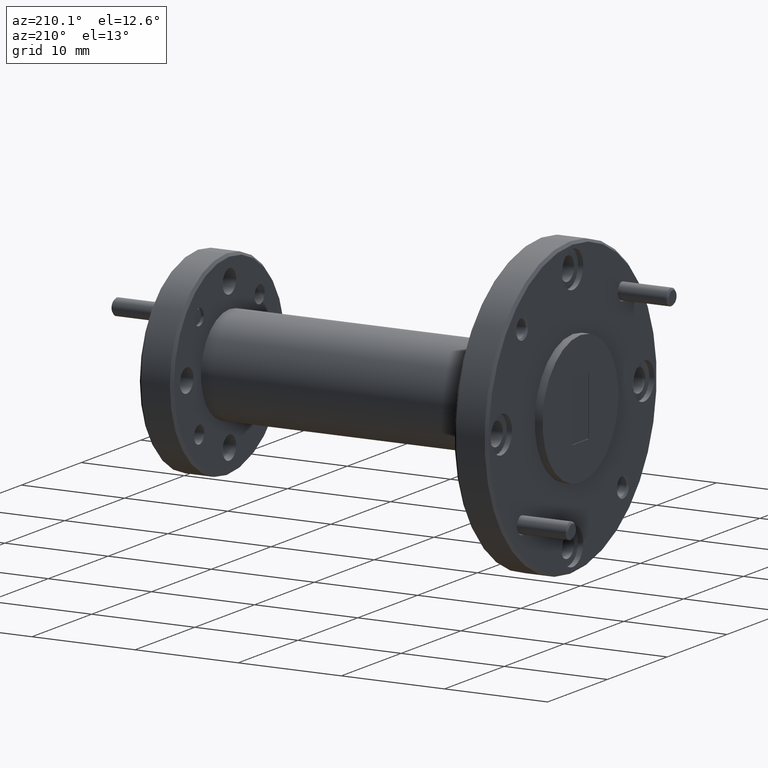
[diagram: clean part render]
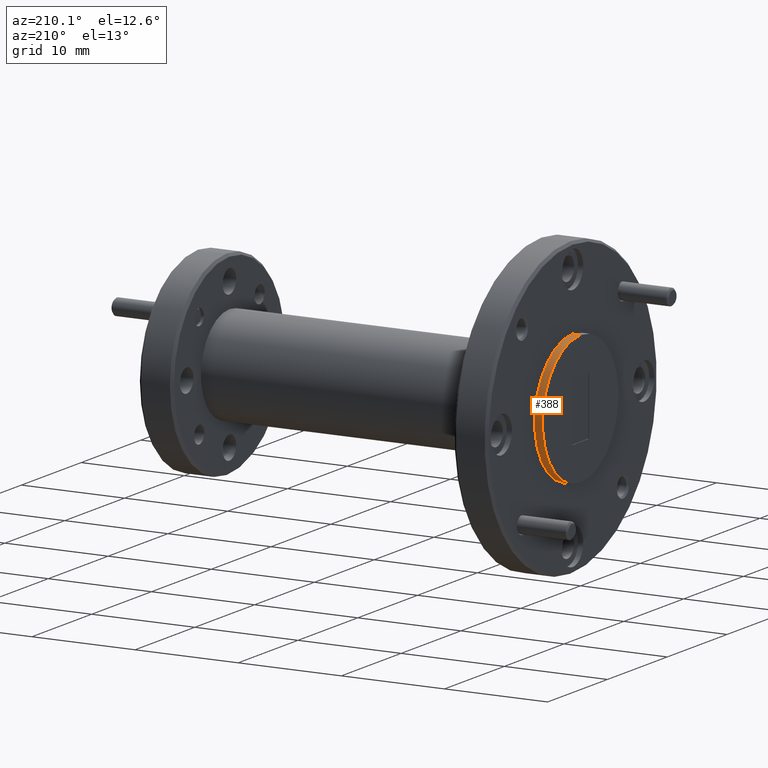
[diagram: same view with one face highlighted and labeled with its STEP entity id]
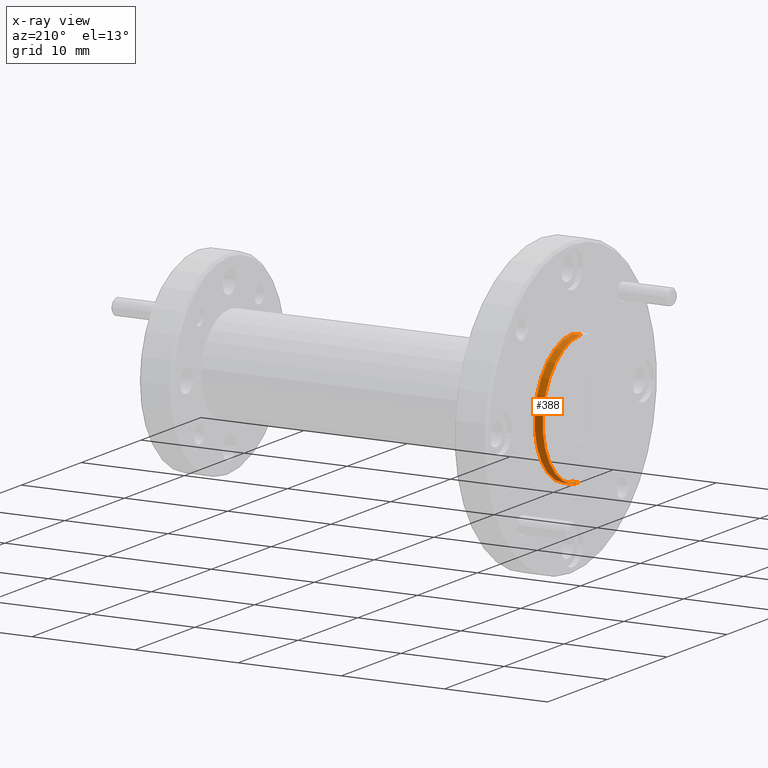
[diagram: x-ray of the same camera — body ghosted, the highlighted face saturated]
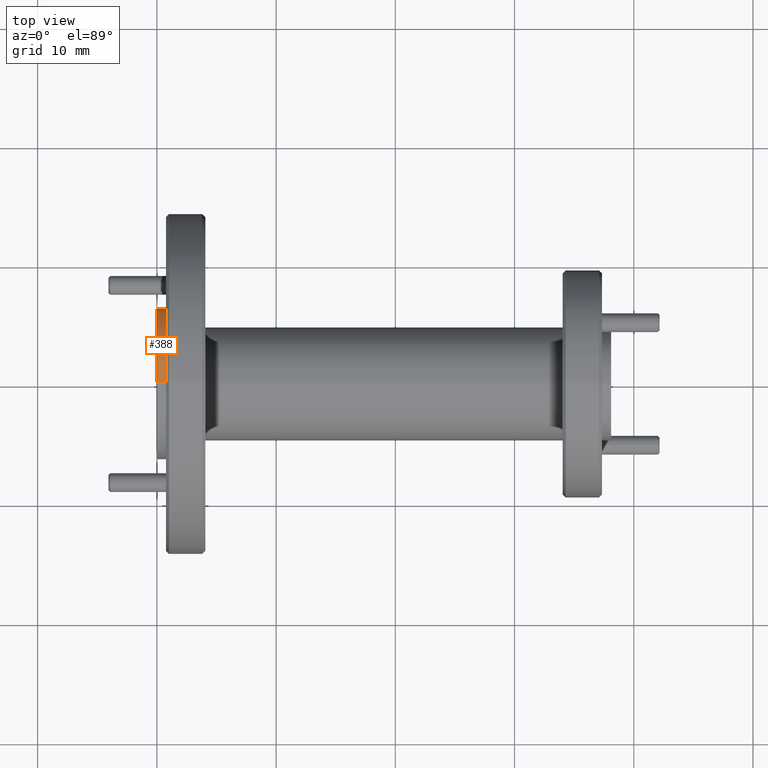
[diagram: same view with one face highlighted and labeled with its STEP entity id]
A machine part, auxiliary view. The second image highlights one B-rep face of the part: STEP entity #388.
The next image is the same camera in x-ray: the body ghosted, the highlighted face saturated — about 0% of this face is hidden behind the body in this view.
A second angle (top view) of the same face is appended — the face is thin or edge-on in the first view.
In plain terms, the highlighted cylindrical surface (partial cylindrical patch) has radius 6.35 mm, axis along (-1, -0, -0).
Its self-contained STEP definition (entity closure, byte-faithful):
#6 = CARTESIAN_POINT ( 'NONE',  ( 7.582401355855259500E-033, 3.061616997868383000E-017, -0.2500000000000000000 ) ) ;
#92 = CARTESIAN_POINT ( 'NONE',  ( 7.582401355855259500E-033, 0.0000000000000000000, 0.0000000000000000000 ) ) ;
#104 = DIRECTION ( 'NONE',  ( -1.000000000000000000, -0.0000000000000000000, -0.0000000000000000000 ) ) ;
#180 = LINE ( 'NONE', #3101, #1128 ) ;
#204 = DIRECTION ( 'NONE',  ( 0.0000000000000000000, 0.0000000000000000000, 1.000000000000000000 ) ) ;
#388 = ADVANCED_FACE ( 'NONE', ( #1908 ), #2815, .T. ) ;
#389 = CARTESIAN_POINT ( 'NONE',  ( 0.0000000000000000000, 0.0000000000000000000, 0.2500000000000000000 ) ) ;
#405 = CARTESIAN_POINT ( 'NONE',  ( 0.03000000000000003700, 0.0000000000000000000, 0.0000000000000000000 ) ) ;
#511 = VECTOR ( 'NONE', #104, 39.37007874015748100 ) ;
#608 = DIRECTION ( 'NONE',  ( -1.000000000000000000, -0.0000000000000000000, -0.0000000000000000000 ) ) ;
#663 = EDGE_LOOP ( 'NONE', ( #2954, #1959, #1872, #3739 ) ) ;
#697 = AXIS2_PLACEMENT_3D ( 'NONE', #92, #2210, #2182 ) ;
#719 = DIRECTION ( 'NONE',  ( 0.0000000000000000000, 0.0000000000000000000, 1.000000000000000000 ) ) ;
#895 = VERTEX_POINT ( 'NONE', #3883 ) ;
#1128 = VECTOR ( 'NONE', #608, 39.37007874015748100 ) ;
#1201 = CIRCLE ( 'NONE', #697, 0.2500000000000000000 ) ;
#1319 = DIRECTION ( 'NONE',  ( -1.000000000000000000, -0.0000000000000000000, -0.0000000000000000000 ) ) ;
#1407 = CARTESIAN_POINT ( 'NONE',  ( 7.582401355855259500E-033, 0.0000000000000000000, 0.2500000000000000000 ) ) ;
#1648 = CARTESIAN_POINT ( 'NONE',  ( 0.0000000000000000000, 0.0000000000000000000, 0.0000000000000000000 ) ) ;
#1872 = ORIENTED_EDGE ( 'NONE', *, *, #1909, .F. ) ;
#1908 = FACE_OUTER_BOUND ( 'NONE', #663, .T. ) ;
#1909 = EDGE_CURVE ( 'NONE', #2787, #2639, #1201, .T. ) ;
#1959 = ORIENTED_EDGE ( 'NONE', *, *, #2703, .T. ) ;
#2182 = DIRECTION ( 'NONE',  ( 0.0000000000000000000, 0.0000000000000000000, 1.000000000000000000 ) ) ;
#2198 = EDGE_CURVE ( 'NONE', #895, #3665, #2772, .T. ) ;
#2210 = DIRECTION ( 'NONE',  ( -1.000000000000000000, -0.0000000000000000000, -0.0000000000000000000 ) ) ;
#2434 = EDGE_CURVE ( 'NONE', #895, #2787, #2963, .T. ) ;
#2554 = DIRECTION ( 'NONE',  ( -1.000000000000000000, -0.0000000000000000000, -0.0000000000000000000 ) ) ;
#2639 = VERTEX_POINT ( 'NONE', #6 ) ;
#2703 = EDGE_CURVE ( 'NONE', #3665, #2639, #180, .T. ) ;
#2772 = CIRCLE ( 'NONE', #3508, 0.2500000000000000000 ) ;
#2787 = VERTEX_POINT ( 'NONE', #1407 ) ;
#2815 = CYLINDRICAL_SURFACE ( 'NONE', #3782, 0.2500000000000000000 ) ;
#2954 = ORIENTED_EDGE ( 'NONE', *, *, #2198, .T. ) ;
#2963 = LINE ( 'NONE', #389, #511 ) ;
#3101 = CARTESIAN_POINT ( 'NONE',  ( 0.0000000000000000000, 3.061616997868383000E-017, -0.2500000000000000000 ) ) ;
#3508 = AXIS2_PLACEMENT_3D ( 'NONE', #405, #2554, #719 ) ;
#3665 = VERTEX_POINT ( 'NONE', #3760 ) ;
#3739 = ORIENTED_EDGE ( 'NONE', *, *, #2434, .F. ) ;
#3760 = CARTESIAN_POINT ( 'NONE',  ( 0.03000000000000003700, 3.061616997868383000E-017, -0.2500000000000000000 ) ) ;
#3782 = AXIS2_PLACEMENT_3D ( 'NONE', #1648, #1319, #204 ) ;
#3883 = CARTESIAN_POINT ( 'NONE',  ( 0.03000000000000003700, 0.0000000000000000000, 0.2500000000000000000 ) ) ;